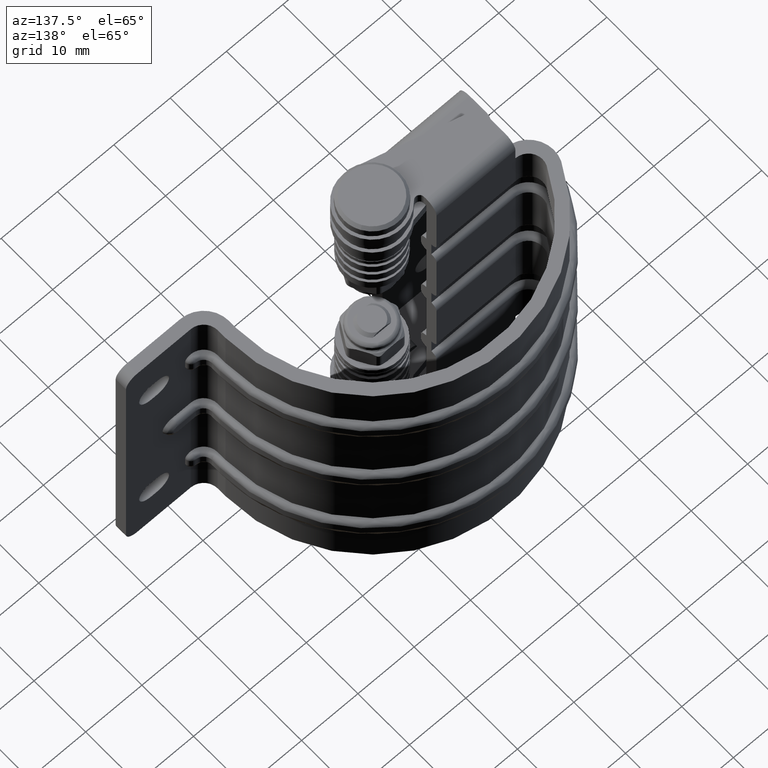
[diagram: clean part render]
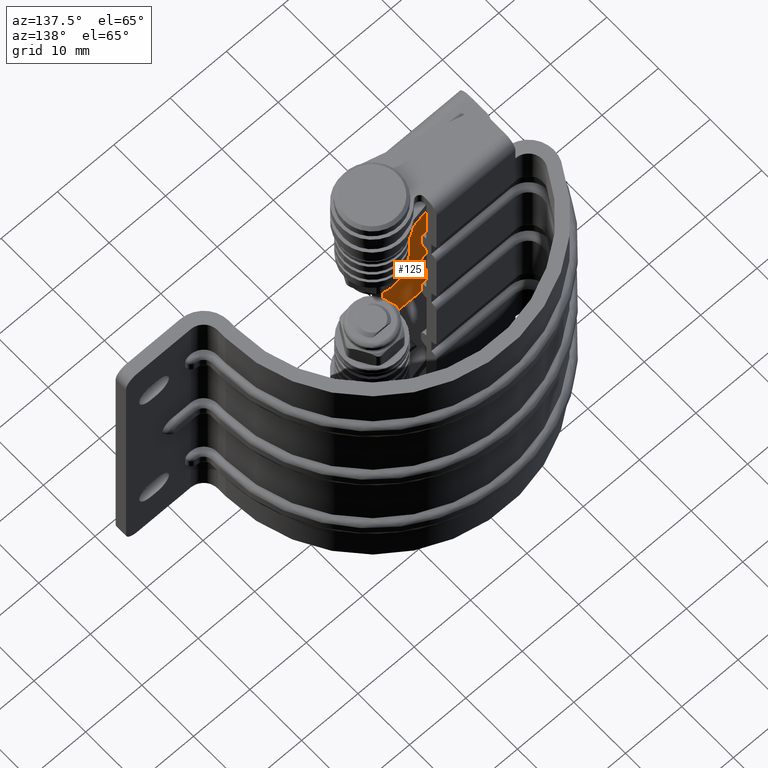
[diagram: same view with one face highlighted and labeled with its STEP entity id]
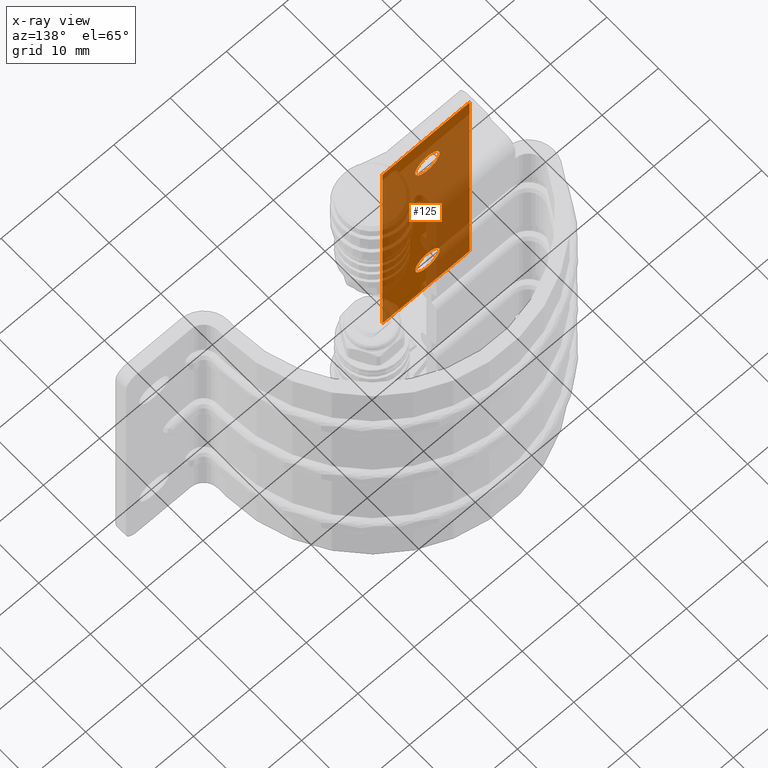
[diagram: x-ray of the same camera — body ghosted, the highlighted face saturated]
A machine part, auxiliary view. The second image highlights one B-rep face of the part: STEP entity #125.
The next image is the same camera in x-ray: the body ghosted, the highlighted face saturated — about 80% of this face is hidden behind the body in this view.
In plain terms, the highlighted planar face has unit normal (0, -1, 0).
Its self-contained STEP definition (entity closure, byte-faithful):
#125=ADVANCED_FACE('',(#703,#704,#705),#702,.F.);
#702=PLANE('',#5220);
#703=FACE_OUTER_BOUND('',#5221,.T.);
#704=FACE_BOUND('',#5222,.T.);
#705=FACE_BOUND('',#5223,.T.);
#5217=CARTESIAN_POINT('',(-2.25500000000E+01,-4.00000000000E+00,2.76000000000E+01));
#5218=DIRECTION('',(0.00000000000E+00,-1.00000000000E+00,0.00000000000E+00));
#5219=DIRECTION('',(0.00000000000E+00,0.00000000000E+00,-1.00000000000E+00));
#5220=AXIS2_PLACEMENT_3D('',#5217,#5218,#5219);
#5221=EDGE_LOOP('',(#9664,#9665,#9666,#9667));
#5222=EDGE_LOOP('',(#9668,#9669));
#5223=EDGE_LOOP('',(#9670,#9671));
#9664=ORIENTED_EDGE('',*,*,#11766,.T.);
#9665=ORIENTED_EDGE('',*,*,#11788,.F.);
#9666=ORIENTED_EDGE('',*,*,#11808,.F.);
#9667=ORIENTED_EDGE('',*,*,#11821,.T.);
#9668=ORIENTED_EDGE('',*,*,#11822,.F.);
#9669=ORIENTED_EDGE('',*,*,#11823,.F.);
#9670=ORIENTED_EDGE('',*,*,#11824,.F.);
#9671=ORIENTED_EDGE('',*,*,#11825,.F.);
#11766=EDGE_CURVE('',#13017,#13010,#13018,.T.);
#11788=EDGE_CURVE('',#13161,#13010,#13168,.T.);
#11808=EDGE_CURVE('',#13302,#13161,#13303,.T.);
#11821=EDGE_CURVE('',#13302,#13017,#13390,.T.);
#11822=EDGE_CURVE('',#13396,#13397,#13398,.T.);
#11823=EDGE_CURVE('',#13397,#13396,#13404,.T.);
#11824=EDGE_CURVE('',#13410,#13411,#13412,.T.);
#11825=EDGE_CURVE('',#13411,#13410,#13418,.T.);
#13010=VERTEX_POINT('',#20131);
#13017=VERTEX_POINT('',#20138);
#13018=LINE('',#20139,#20140);
#13161=VERTEX_POINT('',#20228);
#13168=LINE('',#20232,#20233);
#13302=VERTEX_POINT('',#20315);
#13303=LINE('',#20316,#20317);
#13390=LINE('',#20369,#20370);
#13396=VERTEX_POINT('',#20372);
#13397=VERTEX_POINT('',#20373);
#13398=CIRCLE('',#20377,2.15000000000E+00);
#13404=CIRCLE('',#20381,2.15000000000E+00);
#13410=VERTEX_POINT('',#20382);
#13411=VERTEX_POINT('',#20383);
#13412=CIRCLE('',#20387,2.15000000000E+00);
#13418=CIRCLE('',#20391,2.15000000000E+00);
#20131=CARTESIAN_POINT('',(-5.50000000000E+00,-4.00000000000E+00,2.30000000000E+01));
#20138=CARTESIAN_POINT('',(-2.10000000000E+01,-4.00000000000E+00,2.30000000000E+01));
#20139=CARTESIAN_POINT('',(-2.10000000000E+01,-4.00000000000E+00,2.30000000000E+01));
#20140=VECTOR('',#20141,1.55000000000E+01);
#20141=DIRECTION('',(1.00000000000E+00,-1.03143300352E-15,-2.68172580916E-14));
#20228=CARTESIAN_POINT('',(-5.50000000000E+00,-4.00000000000E+00,-2.30000000000E+01));
#20232=CARTESIAN_POINT('',(-5.50000000000E+00,-4.00000000000E+00,-2.30000000000E+01));
#20233=VECTOR('',#20234,4.60000000000E+01);
#20234=DIRECTION('',(3.86164530304E-17,-3.08931624244E-16,1.00000000000E+00));
#20315=CARTESIAN_POINT('',(-2.10000000000E+01,-4.00000000000E+00,-2.30000000000E+01));
#20316=CARTESIAN_POINT('',(-2.10000000000E+01,-4.00000000000E+00,-2.30000000000E+01));
#20317=VECTOR('',#20318,1.55000000000E+01);
#20318=DIRECTION('',(1.00000000000E+00,-1.14603667058E-16,9.55794583264E-14));
#20369=CARTESIAN_POINT('',(-2.10000000000E+01,-4.00000000000E+00,-2.30000000000E+01));
#20370=VECTOR('',#20371,4.60000000000E+01);
#20371=DIRECTION('',(0.00000000000E+00,0.00000000000E+00,1.00000000000E+00));
#20372=CARTESIAN_POINT('',(-1.13500000000E+01,-4.00000000000E+00,-1.50000000000E+01));
#20373=CARTESIAN_POINT('',(-1.56500000000E+01,-4.00000000000E+00,-1.50000000000E+01));
#20374=CARTESIAN_POINT('',(-1.35000000000E+01,-4.00000000000E+00,-1.50000000000E+01));
#20375=DIRECTION('',(2.06553120860E-16,1.00000000000E+00,0.00000000000E+00));
#20376=DIRECTION('',(-1.00000000000E+00,2.06553120860E-16,-0.00000000000E+00));
#20377=AXIS2_PLACEMENT_3D('',#20374,#20375,#20376);
#20378=CARTESIAN_POINT('',(-1.35000000000E+01,-4.00000000000E+00,-1.50000000000E+01));
#20379=DIRECTION('',(2.06553120860E-16,1.00000000000E+00,0.00000000000E+00));
#20380=DIRECTION('',(-1.00000000000E+00,2.06553120860E-16,-0.00000000000E+00));
#20381=AXIS2_PLACEMENT_3D('',#20378,#20379,#20380);
#20382=CARTESIAN_POINT('',(-1.13500000000E+01,-4.00000000000E+00,1.50000000000E+01));
#20383=CARTESIAN_POINT('',(-1.56500000000E+01,-4.00000000000E+00,1.50000000000E+01));
#20384=CARTESIAN_POINT('',(-1.35000000000E+01,-4.00000000000E+00,1.50000000000E+01));
#20385=DIRECTION('',(-2.06553120860E-16,1.00000000000E+00,0.00000000000E+00));
#20386=DIRECTION('',(-1.00000000000E+00,-2.06553120860E-16,-0.00000000000E+00));
#20387=AXIS2_PLACEMENT_3D('',#20384,#20385,#20386);
#20388=CARTESIAN_POINT('',(-1.35000000000E+01,-4.00000000000E+00,1.50000000000E+01));
#20389=DIRECTION('',(-2.06553120860E-16,1.00000000000E+00,0.00000000000E+00));
#20390=DIRECTION('',(-1.00000000000E+00,-2.06553120860E-16,-0.00000000000E+00));
#20391=AXIS2_PLACEMENT_3D('',#20388,#20389,#20390);